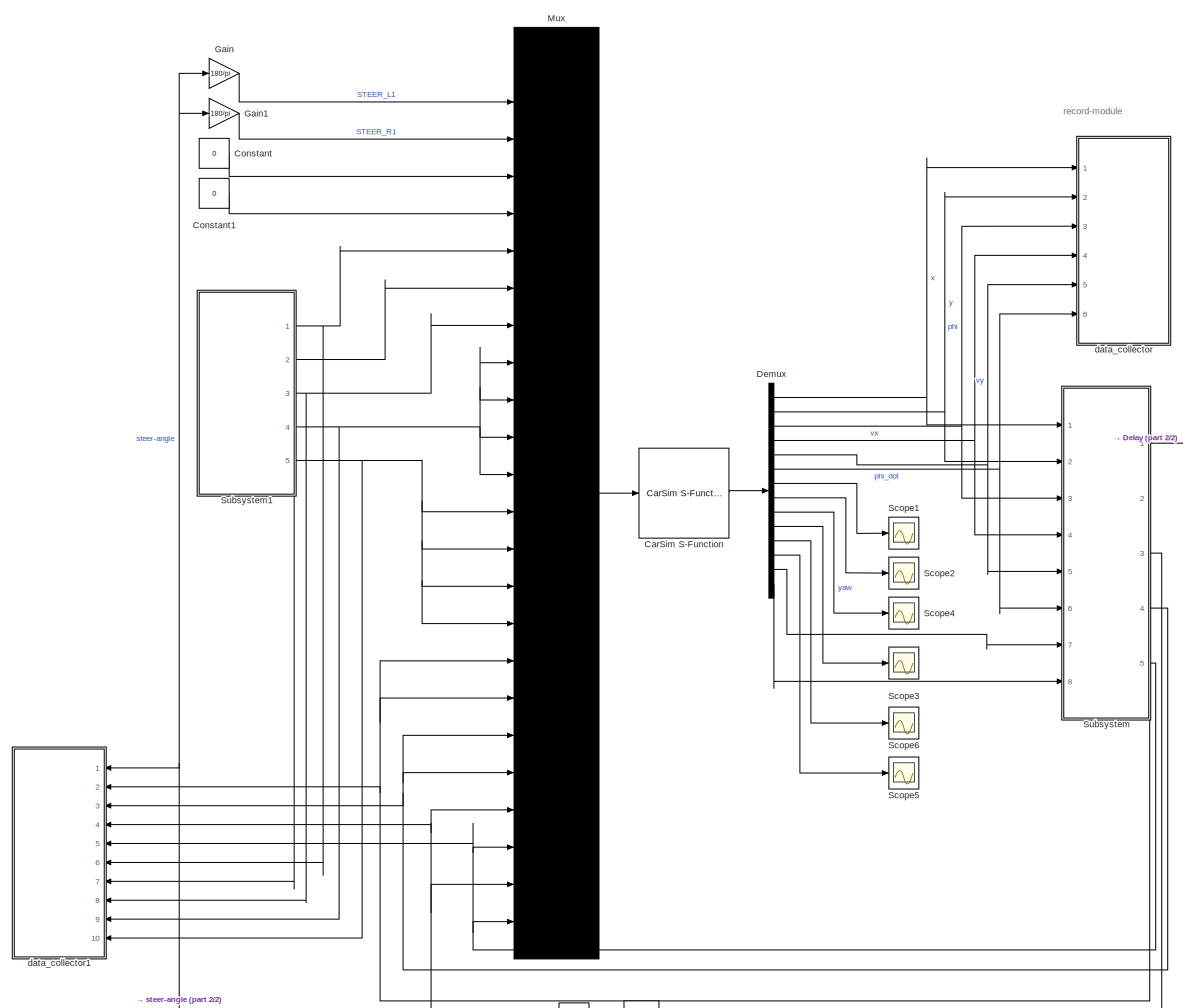
[diagram: root canvas - part 1/2, most of the canvas]
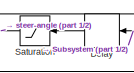
[diagram: root canvas - part 2/2, bottom center region]
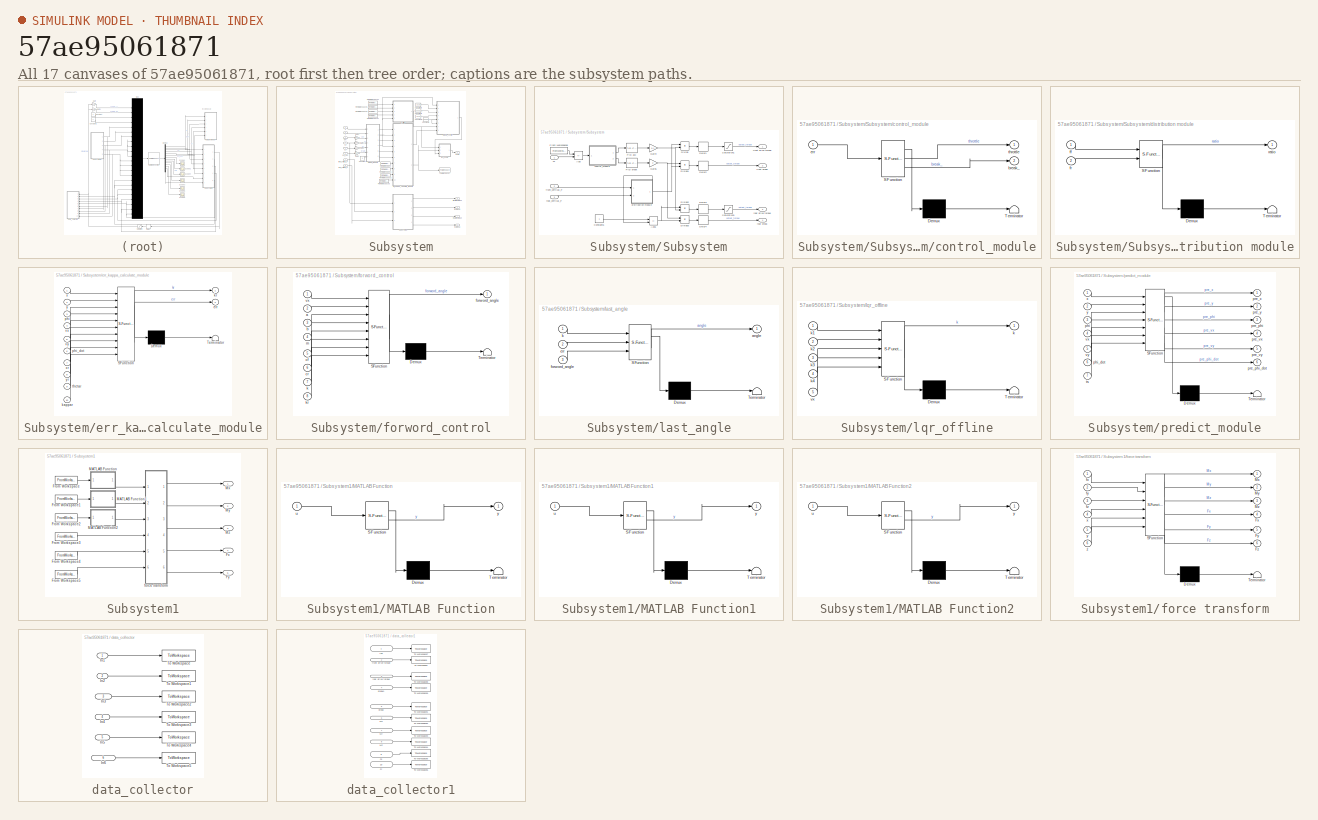
[diagram: thumbnail index - all 17 canvases of the model, root first then tree order]
MODEL slx_57ae95061871
KIND model
CONFIG AbsTol = auto
CONFIG EnableMultiTasking = off
CONFIG FixedStep = auto
CONFIG MaxStep = auto
CONFIG MinStep = auto
CONFIG RelTol = 1e-3
CONFIG SampleTimeConstraint = Unconstrained
CONFIG Solver = VariableStepAuto
CONFIG SolverName = VariableStepAuto
CONFIG StartTime = 0.0
CONFIG StopTime = 25
BLOCK [Reference] CarSim S-Function  REF=Solver_SF/CarSim S-Function
  Ports = [1, 1]
  Priority = 1
  SourceBlock = Solver_SF/CarSim S-Function
  SourceProductName = CarSim S-Function
  SourceType = Vehicle math model library
BLOCK [Constant] Constant
  Value = 0
BLOCK [Constant] Constant1
  Value = 0
BLOCK [Delay] Delay
  DelayLength = 1
  InputPortMap = u0
  NameLocation = top
  Ports = [1, 1]
  UseCircularBuffer = on
BLOCK [Demux] Demux
  Outputs = 14
  Ports = [1, 14]
BLOCK [Gain] Gain
  Gain = 180/pi
BLOCK [Gain] Gain1
  Gain = 180/pi
BLOCK [Mux] Mux
  DisplayOption = signals
  Inputs = 24
  Ports = [24, 1]
BLOCK [Saturate] Saturation
  LowerLimit = -0.7
  NameLocation = top
  UpperLimit = 0.7
BLOCK [Scope] Scope1
  Floating = off
  NumInputPorts = 1
  Ports = [1]
  ScopeSpecificationString = Simulink.scopes.TimeScopeBlockCfg('CurrentConfiguration', extmgr.ConfigurationSet(extmgr.Configuration('Core','General UI',true),extmgr.Configuration('Core','Source UI',true),extmgr.Configuration('Sources','WiredSimulink',true,'DataLoggingVariableName','ScopeData1'),extmgr.Configuration('Visuals','Time Domain',true,'SerializedDisplays',{struct('MinYLimReal','-2.41886','MaxYLimReal','5.00442','YLab...<+1439ch>
BLOCK [Scope] Scope2
  Floating = off
  NumInputPorts = 1
  Ports = [1]
  ScopeSpecificationString = Simulink.scopes.TimeScopeBlockCfg('CurrentConfiguration', extmgr.ConfigurationSet(extmgr.Configuration('Core','General UI',true),extmgr.Configuration('Core','Source UI',true),extmgr.Configuration('Sources','WiredSimulink',true,'DataLoggingVariableName','ScopeData2'),extmgr.Configuration('Visuals','Time Domain',true,'SerializedDisplays',{struct('MinYLimReal','-4.42874','MaxYLimReal','0.55741','YLab...<+1439ch>
BLOCK [Scope] Scope3
  Floating = off
  NumInputPorts = 1
  Ports = [1]
  ScopeSpecificationString = Simulink.scopes.TimeScopeBlockCfg('CurrentConfiguration', extmgr.ConfigurationSet(extmgr.Configuration('Core','General UI',true),extmgr.Configuration('Core','Source UI',true),extmgr.Configuration('Sources','WiredSimulink',true,'DataLoggingVariableName','ScopeData3'),extmgr.Configuration('Visuals','Time Domain',true,'SerializedDisplays',{struct('MinYLimReal','-0.66491','MaxYLimReal','0.62801','YLab...<+1439ch>
BLOCK [Scope] Scope4
  Floating = off
  NumInputPorts = 1
  Ports = [1]
  ScopeSpecificationString = Simulink.scopes.TimeScopeBlockCfg('CurrentConfiguration', extmgr.ConfigurationSet(extmgr.Configuration('Core','General UI',true),extmgr.Configuration('Core','Source UI',true),extmgr.Configuration('Sources','WiredSimulink',true,'DataLoggingVariableName','ScopeData4'),extmgr.Configuration('Visuals','Time Domain',true,'SerializedDisplays',{struct('MinYLimReal','-43.34464','MaxYLimReal','51.56458','YL...<+1444ch>
BLOCK [Scope] Scope5
  Floating = off
  NumInputPorts = 1
  Ports = [1]
  ScopeSpecificationString = Simulink.scopes.TimeScopeBlockCfg('CurrentConfiguration', extmgr.ConfigurationSet(extmgr.Configuration('Core','General UI',true),extmgr.Configuration('Core','Source UI',true),extmgr.Configuration('Sources','WiredSimulink',true,'DataLoggingVariableName','ScopeData5'),extmgr.Configuration('Visuals','Time Domain',true,'SerializedDisplays',{struct('MinYLimReal','0.46538','MaxYLimReal','1.63553','YLabe...<+1438ch>
BLOCK [Scope] Scope6
  Floating = off
  NumInputPorts = 1
  Ports = [1]
  ScopeSpecificationString = Simulink.scopes.TimeScopeBlockCfg('CurrentConfiguration', extmgr.ConfigurationSet(extmgr.Configuration('Core','General UI',true),extmgr.Configuration('Core','Source UI',true),extmgr.Configuration('Sources','WiredSimulink',true,'DataLoggingVariableName','ScopeData6'),extmgr.Configuration('Visuals','Time Domain',true,'SerializedDisplays',{struct('MinYLimReal','-1.05937','MaxYLimReal','0.76057','YLab...<+1438ch>
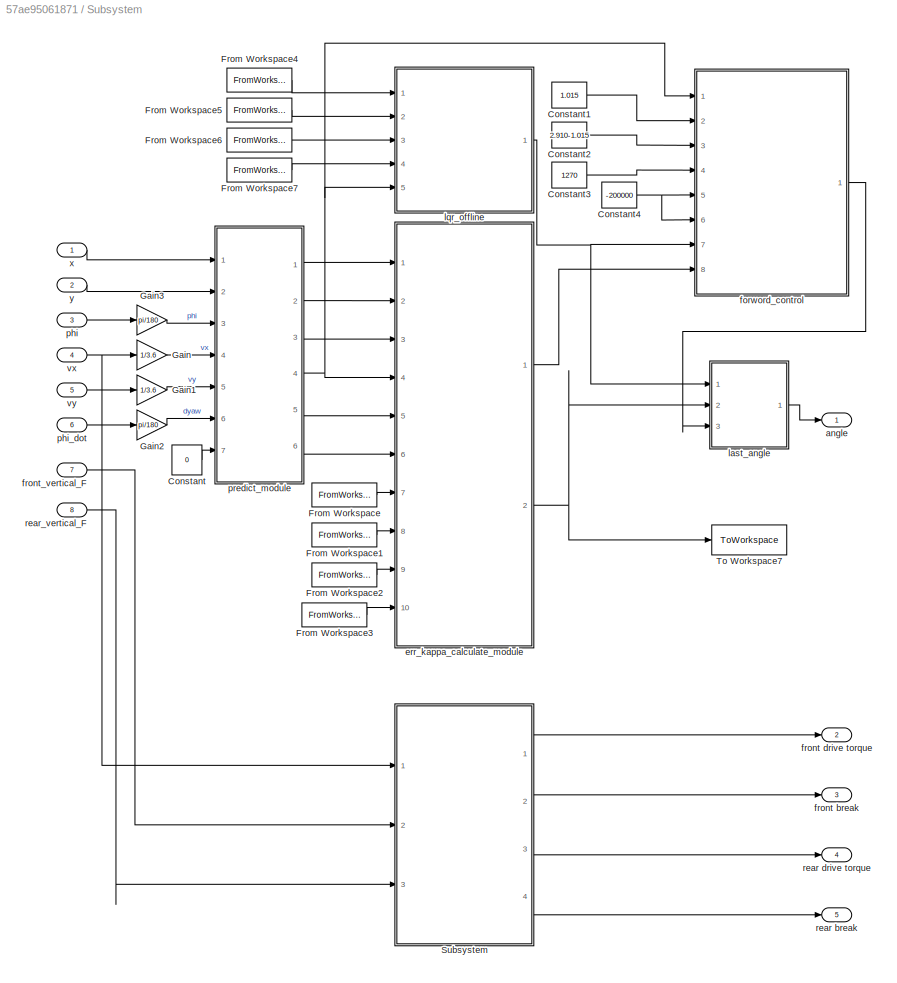
BLOCK [SubSystem] Subsystem
  Ports = [8, 5]
  RequestExecContextInheritance = off
BLOCK [Outport] Subsystem/ front drive torque
  Port = 2
  VectorParamsAs1DForOutWhenUnconnected = off
BLOCK [Constant] Subsystem/Constant
  Value = 0
BLOCK [Constant] Subsystem/Constant1
  Value = 1.015
BLOCK [Constant] Subsystem/Constant2
  Value = 2.910-1.015
BLOCK [Constant] Subsystem/Constant3
  Value = 1270
BLOCK [Constant] Subsystem/Constant4
  Value = -200000
BLOCK [FromWorkspace] Subsystem/From Workspace
  VariableName = xr
BLOCK [FromWorkspace] Subsystem/From Workspace1
  VariableName = yr
BLOCK [FromWorkspace] Subsystem/From Workspace2
  VariableName = thetar
BLOCK [FromWorkspace] Subsystem/From Workspace3
  VariableName = kappar
BLOCK [FromWorkspace] Subsystem/From Workspace4
  VariableName = k1
BLOCK [FromWorkspace] Subsystem/From Workspace5
  VariableName = k2
BLOCK [FromWorkspace] Subsystem/From Workspace6
  VariableName = k3
BLOCK [FromWorkspace] Subsystem/From Workspace7
  VariableName = k4
BLOCK [Gain] Subsystem/Gain
  Gain = 1/3.6
BLOCK [Gain] Subsystem/Gain1
  Gain = 1/3.6
BLOCK [Gain] Subsystem/Gain2
  Gain = pi/180
BLOCK [Gain] Subsystem/Gain3
  Gain = pi/180
BLOCK [SubSystem] Subsystem/Subsystem
  Ports = [3, 4]
  RequestExecContextInheritance = off
BLOCK [Outport] Subsystem/Subsystem/ front drive torque
  VectorParamsAs1DForOutWhenUnconnected = off
BLOCK [Sum] Subsystem/Subsystem/Add
  IconShape = rectangular
  Inputs = +-
  Ports = [2, 1]
BLOCK [Sum] Subsystem/Subsystem/Add1
  IconShape = rectangular
  Inputs = +-
  Ports = [2, 1]
BLOCK [Constant] Subsystem/Subsystem/Constant5
BLOCK [Delay] Subsystem/Subsystem/Delay1
  DelayLength = 1
  InputPortMap = u0
  NameLocation = top
  Ports = [1, 1]
  UseCircularBuffer = on
BLOCK [Delay] Subsystem/Subsystem/Delay2
  DelayLength = 1
  InputPortMap = u0
  NameLocation = top
  Ports = [1, 1]
  UseCircularBuffer = on
BLOCK [Delay] Subsystem/Subsystem/Delay3
  DelayLength = 1
  InputPortMap = u0
  NameLocation = top
  Ports = [1, 1]
  UseCircularBuffer = on
BLOCK [Delay] Subsystem/Subsystem/Delay4
  DelayLength = 1
  InputPortMap = u0
  NameLocation = top
  Ports = [1, 1]
  UseCircularBuffer = on
BLOCK [Product] Subsystem/Subsystem/Divide
  Inputs = **
  Ports = [2, 1]
BLOCK [Product] Subsystem/Subsystem/Divide1
  Inputs = **
  Ports = [2, 1]
BLOCK [Product] Subsystem/Subsystem/Divide2
  Inputs = **
  Ports = [2, 1]
BLOCK [Product] Subsystem/Subsystem/Divide3
  Inputs = **
  Ports = [2, 1]
BLOCK [FromWorkspace] Subsystem/Subsystem/From Workspace8
  VariableName = target_speed
BLOCK [Gain] Subsystem/Subsystem/Gain4
  Gain = 0.1
BLOCK [Gain] Subsystem/Subsystem/Gain5
  Gain = 2
BLOCK [Reference] Subsystem/Subsystem/PID acc  REF=simulink/Continuous/PID Controller
  Ports = [1, 1]
  SourceBlock = simulink/Continuous/PID Controller
  SourceProductBaseCode = SL
  SourceType = PID 1dof
BLOCK [Reference] Subsystem/Subsystem/PID break  REF=simulink/Continuous/PID Controller
  Ports = [1, 1]
  SourceBlock = simulink/Continuous/PID Controller
  SourceProductBaseCode = SL
  SourceType = PID 1dof
BLOCK [Saturate] Subsystem/Subsystem/Saturation1
  LowerLimit = -50
  NameLocation = top
  UpperLimit = 420
BLOCK [Saturate] Subsystem/Subsystem/Saturation3
  LowerLimit = -50
  NameLocation = top
  UpperLimit = 420
BLOCK [SubSystem] Subsystem/Subsystem/control_module
  ErrorFcn = Stateflow.Translate.translate
  PermitHierarchicalResolution = ExplicitOnly
  Ports = [1, 2]
  RequestExecContextInheritance = off
  SFBlockType = MATLAB Function
  TreatAsAtomicUnit = on
BLOCK [Demux] Subsystem/Subsystem/control_module/ Demux 
  Outputs = 1
  Ports = [1, 1]
BLOCK [S-Function] Subsystem/Subsystem/control_module/ SFunction 
  EnableBusSupport = on
  FunctionName = sf_sfun
  PortCounts = [1 3]
  Ports = [1, 3]
  SFcnIsStateOwnerBlock = off
  SFunctionDeploymentMode = off
  Tag = Stateflow S-Function 6
BLOCK [Terminator] Subsystem/Subsystem/control_module/ Terminator 
BLOCK [Outport] Subsystem/Subsystem/control_module/break_
  Port = 2
BLOCK [Inport] Subsystem/Subsystem/control_module/err
BLOCK [Outport] Subsystem/Subsystem/control_module/throttle
BLOCK [SubSystem] Subsystem/Subsystem/distribution module
  ErrorFcn = Stateflow.Translate.translate
  PermitHierarchicalResolution = ExplicitOnly
  Ports = [2, 1]
  RequestExecContextInheritance = off
  SFBlockType = MATLAB Function
  TreatAsAtomicUnit = on
BLOCK [Demux] Subsystem/Subsystem/distribution module/ Demux 
  Outputs = 1
  Ports = [1, 1]
BLOCK [S-Function] Subsystem/Subsystem/distribution module/ SFunction 
  EnableBusSupport = on
  FunctionName = sf_sfun
  PortCounts = [2 2]
  Ports = [2, 2]
  SFcnIsStateOwnerBlock = off
  SFunctionDeploymentMode = off
  Tag = Stateflow S-Function 7
BLOCK [Terminator] Subsystem/Subsystem/distribution module/ Terminator 
BLOCK [Inport] Subsystem/Subsystem/distribution module/ff
BLOCK [Inport] Subsystem/Subsystem/distribution module/fr
  Port = 2
BLOCK [Outport] Subsystem/Subsystem/distribution module/ratio
  VectorParamsAs1DForOutWhenUnconnected = off
BLOCK [Outport] Subsystem/Subsystem/front break
  Port = 2
  VectorParamsAs1DForOutWhenUnconnected = off
BLOCK [Inport] Subsystem/Subsystem/front_vertical_F
  Port = 2
BLOCK [Outport] Subsystem/Subsystem/rear break
  Port = 4
  VectorParamsAs1DForOutWhenUnconnected = off
BLOCK [Outport] Subsystem/Subsystem/rear drive torque
  Port = 3
  VectorParamsAs1DForOutWhenUnconnected = off
BLOCK [Inport] Subsystem/Subsystem/rear_vertical_F
  Port = 3
BLOCK [Inport] Subsystem/Subsystem/vx
  IconDisplay = Port number and signal name
BLOCK [ToWorkspace] Subsystem/To Workspace7
  FixptAsFi = on
  MaxDataPoints = inf
  Ports = [1]
  SampleTime = -1
  SaveFormat = Timeseries
  VariableName = err_ref
BLOCK [Outport] Subsystem/angle
  VectorParamsAs1DForOutWhenUnconnected = off
BLOCK [SubSystem] Subsystem/err_kappa_calculate_module
  ErrorFcn = Stateflow.Translate.translate
  PermitHierarchicalResolution = ExplicitOnly
  Ports = [10, 2]
  RequestExecContextInheritance = off
  SFBlockType = MATLAB Function
  TreatAsAtomicUnit = on
BLOCK [Demux] Subsystem/err_kappa_calculate_module/ Demux 
  Outputs = 1
  Ports = [1, 1]
BLOCK [S-Function] Subsystem/err_kappa_calculate_module/ SFunction 
  EnableBusSupport = on
  FunctionName = sf_sfun
  PortCounts = [10 3]
  Ports = [10, 3]
  SFcnIsStateOwnerBlock = off
  SFunctionDeploymentMode = off
  Tag = Stateflow S-Function 1
BLOCK [Terminator] Subsystem/err_kappa_calculate_module/ Terminator 
BLOCK [Outport] Subsystem/err_kappa_calculate_module/err
  Port = 2
  VectorParamsAs1DForOutWhenUnconnected = off
BLOCK [Inport] Subsystem/err_kappa_calculate_module/kappar
  Port = 10
BLOCK [Outport] Subsystem/err_kappa_calculate_module/kr
  VectorParamsAs1DForOutWhenUnconnected = off
BLOCK [Inport] Subsystem/err_kappa_calculate_module/phi
  Port = 3
BLOCK [Inport] Subsystem/err_kappa_calculate_module/phi_dot
  Port = 6
BLOCK [Inport] Subsystem/err_kappa_calculate_module/thetar
  Port = 9
BLOCK [Inport] Subsystem/err_kappa_calculate_module/vx
  Port = 4
BLOCK [Inport] Subsystem/err_kappa_calculate_module/vy
  Port = 5
BLOCK [Inport] Subsystem/err_kappa_calculate_module/x
BLOCK [Inport] Subsystem/err_kappa_calculate_module/xr
  Port = 7
BLOCK [Inport] Subsystem/err_kappa_calculate_module/y
  Port = 2
BLOCK [Inport] Subsystem/err_kappa_calculate_module/yr
  Port = 8
BLOCK [SubSystem] Subsystem/forword_control
  ErrorFcn = Stateflow.Translate.translate
  PermitHierarchicalResolution = ExplicitOnly
  Ports = [8, 1]
  RequestExecContextInheritance = off
  SFBlockType = MATLAB Function
  TreatAsAtomicUnit = on
BLOCK [Demux] Subsystem/forword_control/ Demux 
  Outputs = 1
  Ports = [1, 1]
BLOCK [S-Function] Subsystem/forword_control/ SFunction 
  EnableBusSupport = on
  FunctionName = sf_sfun
  PortCounts = [8 2]
  Ports = [8, 2]
  SFcnIsStateOwnerBlock = off
  SFunctionDeploymentMode = off
  Tag = Stateflow S-Function 4
BLOCK [Terminator] Subsystem/forword_control/ Terminator 
BLOCK [Inport] Subsystem/forword_control/a
  Port = 2
BLOCK [Inport] Subsystem/forword_control/b
  Port = 3
BLOCK [Inport] Subsystem/forword_control/cf
  Port = 5
BLOCK [Inport] Subsystem/forword_control/cr
  Port = 6
BLOCK [Outport] Subsystem/forword_control/forword_angle
  VectorParamsAs1DForOutWhenUnconnected = off
BLOCK [Inport] Subsystem/forword_control/k
  Port = 7
BLOCK [Inport] Subsystem/forword_control/kr
  Port = 8
BLOCK [Inport] Subsystem/forword_control/m
  Port = 4
BLOCK [Inport] Subsystem/forword_control/vx
BLOCK [Outport] Subsystem/front break
  Port = 3
  VectorParamsAs1DForOutWhenUnconnected = off
BLOCK [Inport] Subsystem/front_vertical_F
  Port = 7
BLOCK [SubSystem] Subsystem/last_angle
  ErrorFcn = Stateflow.Translate.translate
  PermitHierarchicalResolution = ExplicitOnly
  Ports = [3, 1]
  RequestExecContextInheritance = off
  SFBlockType = MATLAB Function
  TreatAsAtomicUnit = on
BLOCK [Demux] Subsystem/last_angle/ Demux 
  Outputs = 1
  Ports = [1, 1]
BLOCK [S-Function] Subsystem/last_angle/ SFunction 
  EnableBusSupport = on
  FunctionName = sf_sfun
  PortCounts = [3 2]
  Ports = [3, 2]
  SFcnIsStateOwnerBlock = off
  SFunctionDeploymentMode = off
  Tag = Stateflow S-Function 5
BLOCK [Terminator] Subsystem/last_angle/ Terminator 
BLOCK [Outport] Subsystem/last_angle/angle
  VectorParamsAs1DForOutWhenUnconnected = off
BLOCK [Inport] Subsystem/last_angle/err
  Port = 2
BLOCK [Inport] Subsystem/last_angle/forword_angle
  Port = 3
BLOCK [Inport] Subsystem/last_angle/k
BLOCK [SubSystem] Subsystem/lqr_offline
  ErrorFcn = Stateflow.Translate.translate
  PermitHierarchicalResolution = ExplicitOnly
  Ports = [5, 1]
  RequestExecContextInheritance = off
  SFBlockType = MATLAB Function
  TreatAsAtomicUnit = on
BLOCK [Demux] Subsystem/lqr_offline/ Demux 
  Outputs = 1
  Ports = [1, 1]
BLOCK [S-Function] Subsystem/lqr_offline/ SFunction 
  EnableBusSupport = on
  FunctionName = sf_sfun
  PortCounts = [5 2]
  Ports = [5, 2]
  SFcnIsStateOwnerBlock = off
  SFunctionDeploymentMode = off
  Tag = Stateflow S-Function 3
BLOCK [Terminator] Subsystem/lqr_offline/ Terminator 
BLOCK [Outport] Subsystem/lqr_offline/k
  VectorParamsAs1DForOutWhenUnconnected = off
BLOCK [Inport] Subsystem/lqr_offline/k1
BLOCK [Inport] Subsystem/lqr_offline/k2
  Port = 2
BLOCK [Inport] Subsystem/lqr_offline/k3
  Port = 3
BLOCK [Inport] Subsystem/lqr_offline/k4
  Port = 4
BLOCK [Inport] Subsystem/lqr_offline/vx
  Port = 5
BLOCK [Inport] Subsystem/phi
  Port = 3
BLOCK [Inport] Subsystem/phi_dot
  Port = 6
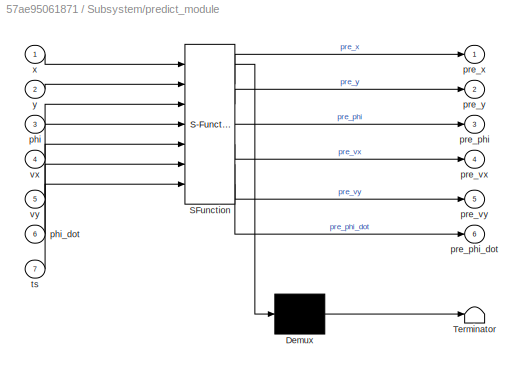
BLOCK [SubSystem] Subsystem/predict_module
  ErrorFcn = Stateflow.Translate.translate
  PermitHierarchicalResolution = ExplicitOnly
  Ports = [7, 6]
  RequestExecContextInheritance = off
  SFBlockType = MATLAB Function
  TreatAsAtomicUnit = on
BLOCK [Demux] Subsystem/predict_module/ Demux 
  Outputs = 1
  Ports = [1, 1]
BLOCK [S-Function] Subsystem/predict_module/ SFunction 
  EnableBusSupport = on
  FunctionName = sf_sfun
  PortCounts = [7 7]
  Ports = [7, 7]
  SFcnIsStateOwnerBlock = off
  SFunctionDeploymentMode = off
  Tag = Stateflow S-Function 2
BLOCK [Terminator] Subsystem/predict_module/ Terminator 
BLOCK [Inport] Subsystem/predict_module/phi
  Port = 3
BLOCK [Inport] Subsystem/predict_module/phi_dot
  Port = 6
BLOCK [Outport] Subsystem/predict_module/pre_phi
  Port = 3
  VectorParamsAs1DForOutWhenUnconnected = off
BLOCK [Outport] Subsystem/predict_module/pre_phi_dot
  Port = 6
  VectorParamsAs1DForOutWhenUnconnected = off
BLOCK [Outport] Subsystem/predict_module/pre_vx
  Port = 4
  VectorParamsAs1DForOutWhenUnconnected = off
BLOCK [Outport] Subsystem/predict_module/pre_vy
  Port = 5
  VectorParamsAs1DForOutWhenUnconnected = off
BLOCK [Outport] Subsystem/predict_module/pre_x
  VectorParamsAs1DForOutWhenUnconnected = off
BLOCK [Outport] Subsystem/predict_module/pre_y
  Port = 2
  VectorParamsAs1DForOutWhenUnconnected = off
BLOCK [Inport] Subsystem/predict_module/ts
  Port = 7
BLOCK [Inport] Subsystem/predict_module/vx
  Port = 4
BLOCK [Inport] Subsystem/predict_module/vy
  Port = 5
BLOCK [Inport] Subsystem/predict_module/x
BLOCK [Inport] Subsystem/predict_module/y
  Port = 2
BLOCK [Outport] Subsystem/rear break
  Port = 5
  VectorParamsAs1DForOutWhenUnconnected = off
BLOCK [Outport] Subsystem/rear drive torque
  Port = 4
  VectorParamsAs1DForOutWhenUnconnected = off
BLOCK [Inport] Subsystem/rear_vertical_F
  Port = 8
BLOCK [Inport] Subsystem/vx
  Port = 4
BLOCK [Inport] Subsystem/vy
  Port = 5
BLOCK [Inport] Subsystem/x
BLOCK [Inport] Subsystem/y
  Port = 2
BLOCK [SubSystem] Subsystem1
  Ports = [0, 5]
  RequestExecContextInheritance = off
BLOCK [FromWorkspace] Subsystem1/From Workspace
  VariableName = fx_impact
BLOCK [FromWorkspace] Subsystem1/From Workspace1
  VariableName = fy_impact
BLOCK [FromWorkspace] Subsystem1/From Workspace2
  VariableName = fz_impact
BLOCK [FromWorkspace] Subsystem1/From Workspace3
  VariableName = x_impact
BLOCK [FromWorkspace] Subsystem1/From Workspace4
  VariableName = y_impact
BLOCK [FromWorkspace] Subsystem1/From Workspace5
  VariableName = z_impact
BLOCK [Outport] Subsystem1/Fx
  Port = 4
BLOCK [Outport] Subsystem1/Fy
  Port = 5
BLOCK [SubSystem] Subsystem1/MATLAB Function
  ErrorFcn = Stateflow.Translate.translate
  PermitHierarchicalResolution = ExplicitOnly
  Ports = [1, 1]
  RequestExecContextInheritance = off
  SFBlockType = MATLAB Function
  TreatAsAtomicUnit = on
BLOCK [Demux] Subsystem1/MATLAB Function/ Demux 
  Outputs = 1
  Ports = [1, 1]
BLOCK [S-Function] Subsystem1/MATLAB Function/ SFunction 
  EnableBusSupport = on
  FunctionName = sf_sfun
  PortCounts = [1 2]
  Ports = [1, 2]
  SFcnIsStateOwnerBlock = off
  SFunctionDeploymentMode = off
  Tag = Stateflow S-Function 8
BLOCK [Terminator] Subsystem1/MATLAB Function/ Terminator 
BLOCK [Inport] Subsystem1/MATLAB Function/u
BLOCK [Outport] Subsystem1/MATLAB Function/y
BLOCK [SubSystem] Subsystem1/MATLAB Function1
  ErrorFcn = Stateflow.Translate.translate
  PermitHierarchicalResolution = ExplicitOnly
  Ports = [1, 1]
  RequestExecContextInheritance = off
  SFBlockType = MATLAB Function
  TreatAsAtomicUnit = on
BLOCK [Demux] Subsystem1/MATLAB Function1/ Demux 
  Outputs = 1
  Ports = [1, 1]
BLOCK [S-Function] Subsystem1/MATLAB Function1/ SFunction 
  EnableBusSupport = on
  FunctionName = sf_sfun
  PortCounts = [1 2]
  Ports = [1, 2]
  SFcnIsStateOwnerBlock = off
  SFunctionDeploymentMode = off
  Tag = Stateflow S-Function 9
BLOCK [Terminator] Subsystem1/MATLAB Function1/ Terminator 
BLOCK [Inport] Subsystem1/MATLAB Function1/u
BLOCK [Outport] Subsystem1/MATLAB Function1/y
BLOCK [SubSystem] Subsystem1/MATLAB Function2
  ErrorFcn = Stateflow.Translate.translate
  PermitHierarchicalResolution = ExplicitOnly
  Ports = [1, 1]
  RequestExecContextInheritance = off
  SFBlockType = MATLAB Function
  TreatAsAtomicUnit = on
BLOCK [Demux] Subsystem1/MATLAB Function2/ Demux 
  Outputs = 1
  Ports = [1, 1]
BLOCK [S-Function] Subsystem1/MATLAB Function2/ SFunction 
  EnableBusSupport = on
  FunctionName = sf_sfun
  PortCounts = [1 2]
  Ports = [1, 2]
  SFcnIsStateOwnerBlock = off
  SFunctionDeploymentMode = off
  Tag = Stateflow S-Function 10
BLOCK [Terminator] Subsystem1/MATLAB Function2/ Terminator 
BLOCK [Inport] Subsystem1/MATLAB Function2/u
BLOCK [Outport] Subsystem1/MATLAB Function2/y
BLOCK [Outport] Subsystem1/Mx
BLOCK [Outport] Subsystem1/My
  Port = 2
BLOCK [Outport] Subsystem1/Mz
  Port = 3
BLOCK [SubSystem] Subsystem1/force transform
  ErrorFcn = Stateflow.Translate.translate
  PermitHierarchicalResolution = ExplicitOnly
  Ports = [6, 6]
  RequestExecContextInheritance = off
  SFBlockType = MATLAB Function
  TreatAsAtomicUnit = on
BLOCK [Demux] Subsystem1/force transform/ Demux 
  Outputs = 1
  Ports = [1, 1]
BLOCK [S-Function] Subsystem1/force transform/ SFunction 
  EnableBusSupport = on
  FunctionName = sf_sfun
  PortCounts = [6 7]
  Ports = [6, 7]
  SFcnIsStateOwnerBlock = off
  SFunctionDeploymentMode = off
  Tag = Stateflow S-Function 11
BLOCK [Terminator] Subsystem1/force transform/ Terminator 
BLOCK [Outport] Subsystem1/force transform/Fx
  Port = 4
BLOCK [Outport] Subsystem1/force transform/Fy
  Port = 5
BLOCK [Outport] Subsystem1/force transform/Fz
  Port = 6
BLOCK [Outport] Subsystem1/force transform/Mx
BLOCK [Outport] Subsystem1/force transform/My
  Port = 2
BLOCK [Outport] Subsystem1/force transform/Mz
  Port = 3
BLOCK [Inport] Subsystem1/force transform/fx
BLOCK [Inport] Subsystem1/force transform/fy
  Port = 2
BLOCK [Inport] Subsystem1/force transform/fz
  Port = 3
BLOCK [Inport] Subsystem1/force transform/x
  Port = 4
BLOCK [Inport] Subsystem1/force transform/y
  Port = 5
BLOCK [Inport] Subsystem1/force transform/z
  Port = 6
BLOCK [SubSystem] data_collector
  Ports = [6]
  RequestExecContextInheritance = off
BLOCK [Inport] data_collector/In1
  IconDisplay = Port number and signal name
BLOCK [Inport] data_collector/In2
  IconDisplay = Port number and signal name
  Port = 2
BLOCK [Inport] data_collector/In3
  IconDisplay = Port number and signal name
  Port = 3
BLOCK [Inport] data_collector/In4
  IconDisplay = Port number and signal name
  Port = 4
BLOCK [Inport] data_collector/In5
  IconDisplay = Port number and signal name
  Port = 5
BLOCK [Inport] data_collector/In6
  IconDisplay = Port number and signal name
  Port = 6
BLOCK [ToWorkspace] data_collector/To Workspace
  FixptAsFi = on
  MaxDataPoints = inf
  Ports = [1]
  SampleTime = -1
  SaveFormat = Timeseries
  VariableName = X_real
BLOCK [ToWorkspace] data_collector/To Workspace1
  FixptAsFi = on
  MaxDataPoints = inf
  Ports = [1]
  SampleTime = -1
  SaveFormat = Timeseries
  VariableName = Y_real
BLOCK [ToWorkspace] data_collector/To Workspace2
  FixptAsFi = on
  MaxDataPoints = inf
  Ports = [1]
  SampleTime = -1
  SaveFormat = Timeseries
  VariableName = Yaw_real
BLOCK [ToWorkspace] data_collector/To Workspace3
  FixptAsFi = on
  MaxDataPoints = inf
  Ports = [1]
  SampleTime = -1
  SaveFormat = Timeseries
  VariableName = Vx_real
BLOCK [ToWorkspace] data_collector/To Workspace4
  FixptAsFi = on
  MaxDataPoints = inf
  Ports = [1]
  SampleTime = -1
  SaveFormat = Timeseries
  VariableName = Vy_real
BLOCK [ToWorkspace] data_collector/To Workspace5
  FixptAsFi = on
  MaxDataPoints = inf
  Ports = [1]
  SampleTime = -1
  SaveFormat = Timeseries
  VariableName = Vyaw_real
BLOCK [SubSystem] data_collector1
  NameLocation = top
  Ports = [10]
  RequestExecContextInheritance = off
BLOCK [Inport] data_collector1/ front drive torque
  IconDisplay = Port number and signal name
  Port = 2
BLOCK [Inport] data_collector1/Fx
  IconDisplay = Port number and signal name
  Port = 9
BLOCK [Inport] data_collector1/Fy
  IconDisplay = Port number and signal name
  Port = 10
BLOCK [Inport] data_collector1/In2
  IconDisplay = Port number and signal name
BLOCK [Inport] data_collector1/Mx
  IconDisplay = Port number and signal name
  Port = 6
BLOCK [Inport] data_collector1/My
  IconDisplay = Port number and signal name
  Port = 7
BLOCK [Inport] data_collector1/Mz
  IconDisplay = Port number and signal name
  Port = 8
BLOCK [ToWorkspace] data_collector1/To Workspace
  FixptAsFi = on
  MaxDataPoints = inf
  Ports = [1]
  SampleTime = -1
  SaveFormat = Timeseries
  VariableName = Torque_output_f
BLOCK [ToWorkspace] data_collector1/To Workspace1
  FixptAsFi = on
  MaxDataPoints = inf
  Ports = [1]
  SampleTime = -1
  SaveFormat = Timeseries
  VariableName = Break_output_r
BLOCK [ToWorkspace] data_collector1/To Workspace2
  FixptAsFi = on
  MaxDataPoints = inf
  Ports = [1]
  SampleTime = -1
  SaveFormat = Timeseries
  VariableName = Impact_Fx
BLOCK [ToWorkspace] data_collector1/To Workspace3
  FixptAsFi = on
  MaxDataPoints = inf
  Ports = [1]
  SampleTime = -1
  SaveFormat = Timeseries
  VariableName = Impact_Fy
BLOCK [ToWorkspace] data_collector1/To Workspace4
  FixptAsFi = on
  MaxDataPoints = inf
  Ports = [1]
  SampleTime = -1
  SaveFormat = Timeseries
  VariableName = Impact_Mx
BLOCK [ToWorkspace] data_collector1/To Workspace5
  FixptAsFi = on
  MaxDataPoints = inf
  Ports = [1]
  SampleTime = -1
  SaveFormat = Timeseries
  VariableName = Impact_My
BLOCK [ToWorkspace] data_collector1/To Workspace6
  FixptAsFi = on
  MaxDataPoints = inf
  Ports = [1]
  SampleTime = -1
  SaveFormat = Timeseries
  VariableName = Impact_Mz
BLOCK [ToWorkspace] data_collector1/To Workspace7
  FixptAsFi = on
  MaxDataPoints = inf
  Ports = [1]
  SampleTime = -1
  SaveFormat = Timeseries
  VariableName = steer_angle
BLOCK [ToWorkspace] data_collector1/To Workspace8
  FixptAsFi = on
  MaxDataPoints = inf
  Ports = [1]
  SampleTime = -1
  SaveFormat = Timeseries
  VariableName = Torque_output_r
BLOCK [ToWorkspace] data_collector1/To Workspace9
  FixptAsFi = on
  MaxDataPoints = inf
  Ports = [1]
  SampleTime = -1
  SaveFormat = Timeseries
  VariableName = Break_output_f
BLOCK [Inport] data_collector1/break
  IconDisplay = Port number and signal name
  Port = 5
BLOCK [Inport] data_collector1/break1
  IconDisplay = Port number and signal name
  Port = 4
BLOCK [Inport] data_collector1/rear drive torque
  IconDisplay = Port number and signal name
  Port = 3
ANNOTATION (root): record-module
LINE CarSim S-Function:1 -> Demux:1
LINE Constant1:1 -> Mux:5
LINE Constant:1 -> Mux:4
LINE Delay:1 -> Saturation:1
NET Demux:1 -> Subsystem:1, data_collector:1
LINE Demux:10 -> Scope3:1
LINE Demux:11 -> Scope6:1
LINE Demux:12 -> Scope5:1
LINE Demux:13 -> Subsystem:7
LINE Demux:14 -> Subsystem:8
NET Demux:2 -> Subsystem:2, data_collector:2
NET Demux:3 -> Subsystem:3, data_collector:3
NET Demux:4 -> Subsystem:4, data_collector:4
NET Demux:5 -> Subsystem:5, data_collector:5
NET Demux:6 -> Subsystem:6, data_collector:6
LINE Demux:7 -> Scope1:1
LINE Demux:8 -> Scope2:1
LINE Demux:9 -> Scope4:1
LINE Gain1:1 -> Mux:3
LINE Gain:1 -> Mux:2
LINE Mux:1 -> CarSim S-Function:1
NET Saturation:1 -> Gain1:1, Gain:1, data_collector1:1
LINE Subsystem/Constant1:1 -> Subsystem/forword_control:2
LINE Subsystem/Constant2:1 -> Subsystem/forword_control:3
LINE Subsystem/Constant3:1 -> Subsystem/forword_control:4
NET Subsystem/Constant4:1 -> Subsystem/forword_control:5, Subsystem/forword_control:6
LINE Subsystem/Constant:1 -> Subsystem/predict_module:7
LINE Subsystem/From Workspace1:1 -> Subsystem/err_kappa_calculate_module:8
LINE Subsystem/From Workspace2:1 -> Subsystem/err_kappa_calculate_module:9
LINE Subsystem/From Workspace3:1 -> Subsystem/err_kappa_calculate_module:10
LINE Subsystem/From Workspace4:1 -> Subsystem/lqr_offline:1
LINE Subsystem/From Workspace5:1 -> Subsystem/lqr_offline:2
LINE Subsystem/From Workspace6:1 -> Subsystem/lqr_offline:3
LINE Subsystem/From Workspace7:1 -> Subsystem/lqr_offline:4
LINE Subsystem/From Workspace:1 -> Subsystem/err_kappa_calculate_module:7
LINE Subsystem/Gain1:1 -> Subsystem/predict_module:5
LINE Subsystem/Gain2:1 -> Subsystem/predict_module:6
LINE Subsystem/Gain3:1 -> Subsystem/predict_module:3
LINE Subsystem/Gain:1 -> Subsystem/predict_module:4
NET Subsystem/Subsystem/Add1:1 -> Subsystem/Subsystem/Divide2:1, Subsystem/Subsystem/Divide3:2
LINE Subsystem/Subsystem/Add:1 -> Subsystem/Subsystem/control_module:1
LINE Subsystem/Subsystem/Constant5:1 -> Subsystem/Subsystem/Add1:1
LINE Subsystem/Subsystem/Delay1:1 -> Subsystem/Subsystem/Saturation1:1
LINE Subsystem/Subsystem/Delay2:1 -> Subsystem/Subsystem/front break:1
LINE Subsystem/Subsystem/Delay3:1 -> Subsystem/Subsystem/Saturation3:1
LINE Subsystem/Subsystem/Delay4:1 -> Subsystem/Subsystem/rear break:1
LINE Subsystem/Subsystem/Divide1:1 -> Subsystem/Subsystem/Delay2:1
LINE Subsystem/Subsystem/Divide2:1 -> Subsystem/Subsystem/Delay3:1
LINE Subsystem/Subsystem/Divide3:1 -> Subsystem/Subsystem/Delay4:1
LINE Subsystem/Subsystem/Divide:1 -> Subsystem/Subsystem/Delay1:1
LINE Subsystem/Subsystem/From Workspace8:1 -> Subsystem/Subsystem/Add:1
NET Subsystem/Subsystem/Gain4:1 -> Subsystem/Subsystem/Divide2:2, Subsystem/Subsystem/Divide:2
NET Subsystem/Subsystem/Gain5:1 -> Subsystem/Subsystem/Divide1:1, Subsystem/Subsystem/Divide3:1
LINE Subsystem/Subsystem/PID acc:1 -> Subsystem/Subsystem/Gain4:1
LINE Subsystem/Subsystem/PID break:1 -> Subsystem/Subsystem/Gain5:1
LINE Subsystem/Subsystem/Saturation1:1 -> Subsystem/Subsystem/ front drive torque:1
LINE Subsystem/Subsystem/Saturation3:1 -> Subsystem/Subsystem/rear drive torque:1
LINE Subsystem/Subsystem/control_module:1 -> Subsystem/Subsystem/PID acc:1
LINE Subsystem/Subsystem/control_module:2 -> Subsystem/Subsystem/PID break:1
NET Subsystem/Subsystem/distribution module:1 -> Subsystem/Subsystem/Add1:2, Subsystem/Subsystem/Divide1:2, Subsystem/Subsystem/Divide:1
LINE Subsystem/Subsystem/front_vertical_F:1 -> Subsystem/Subsystem/distribution module:1
LINE Subsystem/Subsystem/rear_vertical_F:1 -> Subsystem/Subsystem/distribution module:2
LINE Subsystem/Subsystem/vx:1 -> Subsystem/Subsystem/Add:2
LINE Subsystem/Subsystem:1 -> Subsystem/ front drive torque:1
LINE Subsystem/Subsystem:2 -> Subsystem/front break:1
LINE Subsystem/Subsystem:3 -> Subsystem/rear drive torque:1
LINE Subsystem/Subsystem:4 -> Subsystem/rear break:1
LINE Subsystem/err_kappa_calculate_module:1 -> Subsystem/forword_control:8
NET Subsystem/err_kappa_calculate_module:2 -> Subsystem/To Workspace7:1, Subsystem/last_angle:2
LINE Subsystem/forword_control:1 -> Subsystem/last_angle:3
LINE Subsystem/front_vertical_F:1 -> Subsystem/Subsystem:2
LINE Subsystem/last_angle:1 -> Subsystem/angle:1
NET Subsystem/lqr_offline:1 -> Subsystem/forword_control:7, Subsystem/last_angle:1
LINE Subsystem/phi:1 -> Subsystem/Gain3:1
LINE Subsystem/phi_dot:1 -> Subsystem/Gain2:1
LINE Subsystem/predict_module:1 -> Subsystem/err_kappa_calculate_module:1
LINE Subsystem/predict_module:2 -> Subsystem/err_kappa_calculate_module:2
LINE Subsystem/predict_module:3 -> Subsystem/err_kappa_calculate_module:3
NET Subsystem/predict_module:4 -> Subsystem/err_kappa_calculate_module:4, Subsystem/forword_control:1, Subsystem/lqr_offline:5
LINE Subsystem/predict_module:5 -> Subsystem/err_kappa_calculate_module:5
LINE Subsystem/predict_module:6 -> Subsystem/err_kappa_calculate_module:6
LINE Subsystem/rear_vertical_F:1 -> Subsystem/Subsystem:3
NET Subsystem/vx:1 -> Subsystem/Gain:1, Subsystem/Subsystem:1
LINE Subsystem/vy:1 -> Subsystem/Gain1:1
LINE Subsystem/x:1 -> Subsystem/predict_module:1
LINE Subsystem/y:1 -> Subsystem/predict_module:2
LINE Subsystem1/From Workspace1:1 -> Subsystem1/MATLAB Function1:1
LINE Subsystem1/From Workspace2:1 -> Subsystem1/MATLAB Function2:1
LINE Subsystem1/From Workspace3:1 -> Subsystem1/force transform:4
LINE Subsystem1/From Workspace4:1 -> Subsystem1/force transform:5
LINE Subsystem1/From Workspace5:1 -> Subsystem1/force transform:6
LINE Subsystem1/From Workspace:1 -> Subsystem1/MATLAB Function:1
LINE Subsystem1/MATLAB Function1:1 -> Subsystem1/force transform:2
LINE Subsystem1/MATLAB Function2:1 -> Subsystem1/force transform:3
LINE Subsystem1/MATLAB Function:1 -> Subsystem1/force transform:1
LINE Subsystem1/force transform:1 -> Subsystem1/Mx:1
LINE Subsystem1/force transform:2 -> Subsystem1/My:1
LINE Subsystem1/force transform:3 -> Subsystem1/Mz:1
LINE Subsystem1/force transform:4 -> Subsystem1/Fx:1
LINE Subsystem1/force transform:5 -> Subsystem1/Fy:1
NET Subsystem1:1 -> Mux:6, data_collector1:6
NET Subsystem1:2 -> Mux:7, data_collector1:7
NET Subsystem1:3 -> Mux:8, data_collector1:8
NET Subsystem1:4 -> Mux:10, Mux:11, Mux:12, Mux:9, data_collector1:9
NET Subsystem1:5 -> Mux:13, Mux:14, Mux:15, Mux:16, data_collector1:10
LINE Subsystem:1 -> Delay:1
NET Subsystem:2 -> Mux:17, Mux:18, data_collector1:2
NET Subsystem:3 -> Mux:21, Mux:23, data_collector1:4
NET Subsystem:4 -> Mux:19, Mux:20, data_collector1:3
NET Subsystem:5 -> Mux:22, Mux:24, data_collector1:5
LINE data_collector/In1:1 -> data_collector/To Workspace:1
LINE data_collector/In2:1 -> data_collector/To Workspace1:1
LINE data_collector/In3:1 -> data_collector/To Workspace2:1
LINE data_collector/In4:1 -> data_collector/To Workspace3:1
LINE data_collector/In5:1 -> data_collector/To Workspace4:1
LINE data_collector/In6:1 -> data_collector/To Workspace5:1
LINE data_collector1/ front drive torque:1 -> data_collector1/To Workspace:1
LINE data_collector1/Fx:1 -> data_collector1/To Workspace5:1
LINE data_collector1/Fy:1 -> data_collector1/To Workspace6:1
LINE data_collector1/In2:1 -> data_collector1/To Workspace7:1
LINE data_collector1/Mx:1 -> data_collector1/To Workspace2:1
LINE data_collector1/My:1 -> data_collector1/To Workspace3:1
LINE data_collector1/Mz:1 -> data_collector1/To Workspace4:1
LINE data_collector1/break1:1 -> data_collector1/To Workspace9:1
LINE data_collector1/break:1 -> data_collector1/To Workspace1:1
LINE data_collector1/rear drive torque:1 -> data_collector1/To Workspace8:1
note: NET lines group one-source signal fan-out (src -> all destinations, sorted); 1:1 wires keep LINE
CHART Subsystem1/MATLAB Function states=1 transitions=1
  STATE_LABEL 'eML_blk_kernel()'
  STATE_LABEL 'SCRIPT:\nfunction y = fcn(u)\nif(u>0)\n    y=u;\nelse\n    y=0;\nend\n\n'
CHART Subsystem1/MATLAB Function1 states=1 transitions=1
  STATE_LABEL 'eML_blk_kernel()'
  STATE_LABEL 'SCRIPT:\nfunction y = fcn(u)\nif(u>0)\n    y=u;\nelse\n    y=0;\nend\n\n'
CHART Subsystem1/MATLAB Function2 states=1 transitions=1
  STATE_LABEL 'eML_blk_kernel()'
  STATE_LABEL 'SCRIPT:\nfunction y = fcn(u)\nif(u>0)\n    y=u;\nelse\n    y=0;\nend\n\n'
CHART Subsystem1/force transform states=1 transitions=1
  STATE_LABEL 'eML_blk_kernel()'
  STATE_LABEL 'SCRIPT:\n%%%碰撞力转化方程，需注意这里的力的方向与坐标轴相对应，+与坐标轴方向相同\n%%% -则相反\nfunction [Mx,My,Mz,Fx,Fy,Fz] = fcn(fx,fy,fz,x,y,z)\nMz = - fx * y + fy * x;\nMx = - fy * z + fz * y;\nMy = - fz * x + fx * z;\nFx = fx/4;\nFy = fy/4;\nFz = fz;\n\n'
CHART Subsystem/err_kappa_calculate_module states=1 transitions=1
  STATE_LABEL 'eML_blk_kernel()'
  STATE_LABEL 'SCRIPT:\nfunction [kr,err] = fcn(x,y,phi,vx,vy,phi_dot,xr,yr,thetar,kappar)\n    n=length(xr);\n    d_min=(x-xr(1))^2+(y-yr(1))^2;\n    min=1;\n    for i=1:n\n        d=(x-xr(i))^2+(y-yr(i))^2;\n        if d<d_min\n            d_min=d;\n            min=i;\n        end\n    end\n    dmin=min;\n    \n    tor=[cos(thetar(dmin));sin(thetar(dmin))];\n    nor=[-sin(thetar(dmin));cos(thetar(dmin))];\n    d_err=[x-xr(dmi...<+600ch>'
CHART Subsystem/predict_module states=1 transitions=1
  STATE_LABEL 'eML_blk_kernel()'
  STATE_LABEL 'SCRIPT:\nfunction [pre_x,pre_y,pre_phi,pre_vx,pre_vy,pre_phi_dot] = fcn(x,y,phi,vx,vy,phi_dot,ts)\n    pre_x=x+vx*ts*cos(phi)-vy*ts*sin(phi);\n    pre_y=y+vy*ts*cos(phi)+vx*ts*sin(phi);\n    pre_phi=phi+phi_dot*ts;\n    pre_vx=vx;\n    pre_vy=vy;\n    pre_phi_dot=phi_dot;\nend\n\n'
CHART Subsystem/lqr_offline states=1 transitions=1
  STATE_LABEL 'eML_blk_kernel()'
  STATE_LABEL 'SCRIPT:\nfunction k  = fcn(k1,k2,k3,k4,vx)\n    if vx<0.01\n        k=[0,0,0,0];\n    else\n        index=round(vx/0.01);\n        k=[k1(index),k2(index),k3(index),k4(index)];\n    end\nend\n\n'
CHART Subsystem/forword_control states=1 transitions=1
  STATE_LABEL 'eML_blk_kernel()'
  STATE_LABEL 'SCRIPT:\nfunction forword_angle = fcn(vx,a,b,m,cf,cr,k,kr)\n    forword_angle=kr*(a+b-b*k(3)-(m*vx*vx/(a+b))*((b/cf)+(a/cr)*k(3)-(a/cr)));\nend\n'
CHART Subsystem/last_angle states=1 transitions=1
  STATE_LABEL 'eML_blk_kernel()'
  STATE_LABEL 'SCRIPT:\nfunction angle = fcn(k,err,forword_angle)\n\n    angle=-k*err+forword_angle;\nend\n'
CHART Subsystem/Subsystem/control_module states=1 transitions=1
  STATE_LABEL 'eML_blk_kernel()'
  STATE_LABEL 'SCRIPT:\nfunction [throttle, break_] = fcn(err)\n%%%\n%accelerate or brak\n%%%\nif(err>=0)\n    throttle = err;\n    break_ = 0;\nelse\n    break_ = -err;\n    throttle =0;\nend\n'
CHART Subsystem/Subsystem/distribution module states=1 transitions=1
  STATE_LABEL 'eML_blk_kernel()'
  STATE_LABEL 'SCRIPT:\nfunction ratio = fcn(ff,fr)\n\n    ratio=ff/(ff+fr);\nend\n'
CHART  states=0 transitions=0
CHART  states=0 transitions=0
CHART  states=0 transitions=0
CHART  states=0 transitions=0
CHART  states=0 transitions=0
CHART  states=0 transitions=0
CHART  states=0 transitions=0
CHART  states=0 transitions=0
CHART  states=0 transitions=0
CHART  states=0 transitions=0
CHART  states=0 transitions=0
